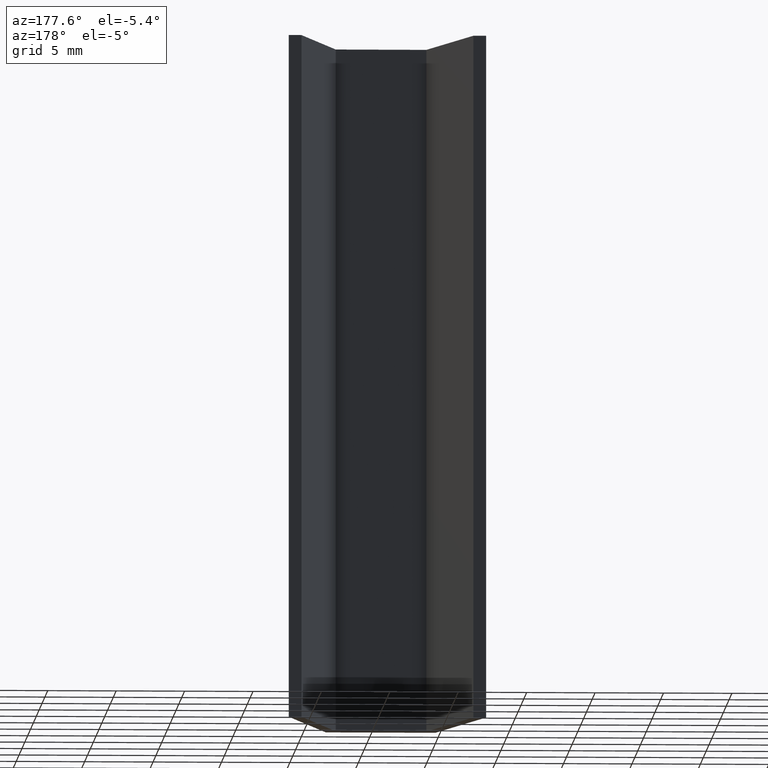
[diagram: clean part render]
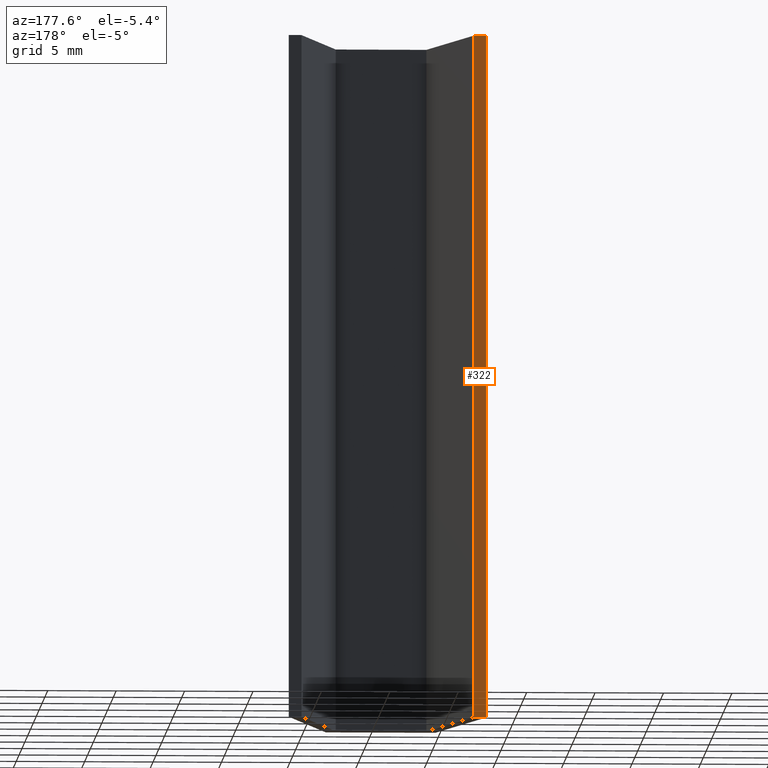
[diagram: same view with one face highlighted and labeled with its STEP entity id]
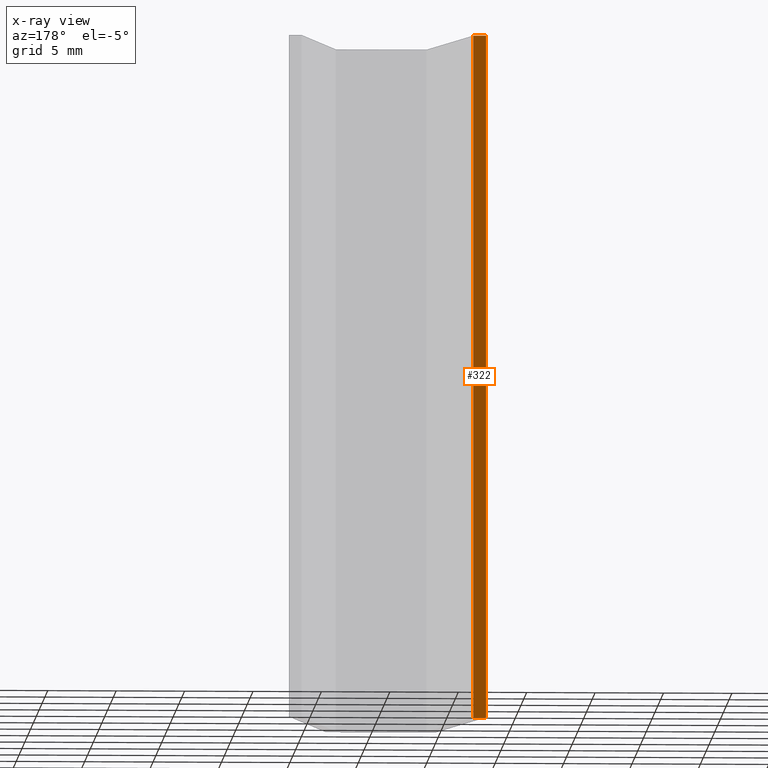
[diagram: x-ray of the same camera — body ghosted, the highlighted face saturated]
A machine part, auxiliary view. The second image highlights one B-rep face of the part: STEP entity #322.
The next image is the same camera in x-ray: the body ghosted, the highlighted face saturated — about 0% of this face is hidden behind the body in this view.
In plain terms, the highlighted planar face has unit normal (0, -1, 0).
Its self-contained STEP definition (entity closure, byte-faithful):
#6 = EDGE_CURVE ( 'NONE', #25, #27, #52, .T. ) ;
#10 = FACE_OUTER_BOUND ( 'NONE', #125, .T. ) ;
#25 = VERTEX_POINT ( 'NONE', #148 ) ;
#27 = VERTEX_POINT ( 'NONE', #134 ) ;
#36 = VERTEX_POINT ( 'NONE', #135 ) ;
#40 = VERTEX_POINT ( 'NONE', #152 ) ;
#52 = LINE ( 'NONE', #142, #53 ) ;
#53 = VECTOR ( 'NONE', #126, 1000.000000000000000 ) ;
#63 = CARTESIAN_POINT ( 'NONE',  ( -3.215390309173439000, 12.00000000000000000, 0.0000000000000000000 ) ) ;
#69 = CARTESIAN_POINT ( 'NONE',  ( -2.283641746804360800, 12.00000000000000000, 50.00000000000000000 ) ) ;
#75 = DIRECTION ( 'NONE',  ( -0.0000000000000000000, -0.0000000000000000000, -1.000000000000000000 ) ) ;
#83 = DIRECTION ( 'NONE',  ( -0.0000000000000000000, -0.0000000000000000000, -1.000000000000000000 ) ) ;
#88 = DIRECTION ( 'NONE',  ( -1.000000000000000000, -0.0000000000000000000, -0.0000000000000000000 ) ) ;
#89 = CARTESIAN_POINT ( 'NONE',  ( -3.215390309173439000, 12.00000000000000000, 50.00000000000000000 ) ) ;
#101 = ORIENTED_EDGE ( 'NONE', *, *, #363, .T. ) ;
#117 = ORIENTED_EDGE ( 'NONE', *, *, #360, .T. ) ;
#125 = EDGE_LOOP ( 'NONE', ( #101, #282, #283, #117 ) ) ;
#126 = DIRECTION ( 'NONE',  ( -1.000000000000000000, -0.0000000000000000000, -0.0000000000000000000 ) ) ;
#134 = CARTESIAN_POINT ( 'NONE',  ( -3.215390309173439000, 12.00000000000000000, 50.00000000000000000 ) ) ;
#135 = CARTESIAN_POINT ( 'NONE',  ( -2.283641746804360800, 12.00000000000000000, 0.0000000000000000000 ) ) ;
#142 = CARTESIAN_POINT ( 'NONE',  ( -3.215390309173439000, 12.00000000000000000, 50.00000000000000000 ) ) ;
#148 = CARTESIAN_POINT ( 'NONE',  ( -2.283641746804360800, 12.00000000000000000, 50.00000000000000000 ) ) ;
#152 = CARTESIAN_POINT ( 'NONE',  ( -3.215390309173439000, 12.00000000000000000, 0.0000000000000000000 ) ) ;
#174 = LINE ( 'NONE', #69, #175 ) ;
#175 = VECTOR ( 'NONE', #75, 1000.000000000000000 ) ;
#178 = LINE ( 'NONE', #89, #179 ) ;
#179 = VECTOR ( 'NONE', #83, 1000.000000000000000 ) ;
#180 = LINE ( 'NONE', #63, #303 ) ;
#219 = DIRECTION ( 'NONE',  ( 0.0000000000000000000, -1.000000000000000000, 0.0000000000000000000 ) ) ;
#235 = CARTESIAN_POINT ( 'NONE',  ( -3.215390309173439000, 12.00000000000000000, 50.00000000000000000 ) ) ;
#250 = DIRECTION ( 'NONE',  ( 0.0000000000000000000, -0.0000000000000000000, -1.000000000000000000 ) ) ;
#258 = PLANE ( 'NONE',  #329 ) ;
#282 = ORIENTED_EDGE ( 'NONE', *, *, #362, .F. ) ;
#283 = ORIENTED_EDGE ( 'NONE', *, *, #6, .F. ) ;
#303 = VECTOR ( 'NONE', #88, 1000.000000000000000 ) ;
#322 = ADVANCED_FACE ( 'NONE', ( #10 ), #258, .F. ) ;
#329 = AXIS2_PLACEMENT_3D ( 'NONE', #235, #219, #250 ) ;
#360 = EDGE_CURVE ( 'NONE', #25, #36, #174, .T. ) ;
#362 = EDGE_CURVE ( 'NONE', #27, #40, #178, .T. ) ;
#363 = EDGE_CURVE ( 'NONE', #36, #40, #180, .T. ) ;